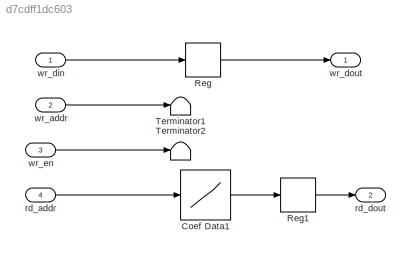
MODEL slx_d7cdff1dc603
KIND model
CONFIG AbsTol = auto
CONFIG FixedStep = auto
CONFIG MaxStep = auto
CONFIG MinStep = auto
CONFIG PreLoadFcn = Param_fir
CONFIG RelTol = 1e-3
CONFIG SampleTimeConstraint = Unconstrained
CONFIG Solver = FixedStepDiscrete
CONFIG SolverMode = SingleTasking
CONFIG SolverName = FixedStepDiscrete
CONFIG StartTime = 0.0
CONFIG StopTime = SimEnd+Ts2*NTaps*2
BLOCK [Lookup] Coef Data1
  InputValues = [0:NTaps-1]
  LookUpMeth = Use Input Nearest
  OutDataTypeStr = fixdt(1,16,15)
  SaturateOnIntegerOverflow = off
  Table = Numerator
BLOCK [Delay] Reg
  DelayLength = 1
  InputPortMap = u0
  InputProcessing = Inherited
  Ports = [1, 1]
BLOCK [Delay] Reg1
  DelayLength = 1
  InputPortMap = u0
  InputProcessing = Inherited
  Ports = [1, 1]
BLOCK [Terminator] Terminator1
BLOCK [Terminator] Terminator2
BLOCK [Inport] rd_addr
  IconDisplay = Port number
  OutDataTypeStr = fixdt('ufix7')
  Port = 4
  PortDimensions = 1
  SampleTime = [7.8125000000000002e-005,0]
  SamplingMode = Sample based
  SignalType = real
BLOCK [Outport] rd_dout
  IconDisplay = Port number
  OutDataTypeStr = fixdt('sfix16_En15')
  Port = 2
  PortDimensions = 1
  SampleTime = [7.8125000000000002e-005,0]
  SamplingMode = Sample based
  SignalType = real
BLOCK [Inport] wr_addr
  IconDisplay = Port number
  OutDataTypeStr = fixdt('ufix7')
  Port = 2
  PortDimensions = 1
  SampleTime = [7.8125000000000002e-005,0]
  SamplingMode = Sample based
  SignalType = real
BLOCK [Inport] wr_din
  IconDisplay = Port number
  OutDataTypeStr = fixdt('sfix16_En15')
  PortDimensions = 1
  SampleTime = [7.8125000000000002e-005,0]
  SamplingMode = Sample based
  SignalType = real
BLOCK [Outport] wr_dout
  IconDisplay = Port number
  OutDataTypeStr = fixdt('sfix16_En15')
  PortDimensions = 1
  SampleTime = [7.8125000000000002e-005,0]
  SamplingMode = Sample based
  SignalType = real
BLOCK [Inport] wr_en
  IconDisplay = Port number
  OutDataTypeStr = boolean
  Port = 3
  PortDimensions = 1
  SampleTime = [7.8125000000000002e-005,0]
  SamplingMode = Sample based
  SignalType = real
LINE Coef Data1:1 -> Reg1:1
LINE Reg1:1 -> rd_dout:1
LINE Reg:1 -> wr_dout:1
LINE rd_addr:1 -> Coef Data1:1
LINE wr_addr:1 -> Terminator1:1
LINE wr_din:1 -> Reg:1
LINE wr_en:1 -> Terminator2:1
